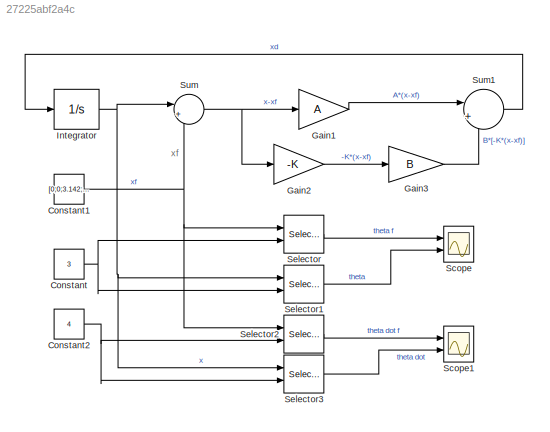
MODEL slx_27225abf2a4c
KIND model
CONFIG AbsTol = auto
CONFIG EnableMultiTasking = off
CONFIG FixedStep = auto
CONFIG MaxStep = auto
CONFIG MinStep = auto
CONFIG RelTol = 1e-3
CONFIG SampleTimeConstraint = Unconstrained
CONFIG SolverName = VariableStepAuto
CONFIG StartTime = 0.0
CONFIG StopTime = 100
BLOCK [Constant] Constant
  Value = 3
BLOCK [Constant] Constant1
  Value = [0;0;3.142;0]
BLOCK [Constant] Constant2
  Value = 4
BLOCK [Gain] Gain1
  Gain = A
  Multiplication = Matrix(K*u) (u vector)
BLOCK [Gain] Gain2
  Gain = -K
  Multiplication = Matrix(K*u) (u vector)
BLOCK [Gain] Gain3
  Gain = B
  Multiplication = Matrix(K*u) (u vector)
BLOCK [Integrator] Integrator
  Ports = [1, 1]
BLOCK [Scope] Scope
  Floating = off
  NumInputPorts = 2
  Ports = [2]
  ScopeSpecificationString = Simulink.scopes.TimeScopeBlockCfg('CurrentConfiguration', extmgr.ConfigurationSet(extmgr.Configuration('Core','General UI',true,'DisplayFullSourceName',true),extmgr.Configuration('Core','Source UI',true),extmgr.Configuration('Sources','WiredSimulink',true),extmgr.Configuration('Visuals','Time Domain',true,'SerializedDisplays',{struct('MinYLimReal','-0.54011','MaxYLimReal','4.86098','YLabelReal',''...<+1598ch>
BLOCK [Scope] Scope1
  Floating = off
  NumInputPorts = 2
  Ports = [2]
  ScopeSpecificationString = Simulink.scopes.TimeScopeBlockCfg('CurrentConfiguration', extmgr.ConfigurationSet(extmgr.Configuration('Core','General UI',true,'DisplayFullSourceName',true),extmgr.Configuration('Core','Source UI',true),extmgr.Configuration('Sources','WiredSimulink',true,'DataLoggingVariableName','ScopeData1'),extmgr.Configuration('Visuals','Time Domain',true,'SerializedDisplays',{struct('MinYLimReal','-0.83024',...<+1645ch>
BLOCK [Selector] Selector
  IndexOptions = Index vector (port)
  Indices = [1 3]
  InputPortWidth = 4
  OutputSizes = 1
  Ports = [2, 1]
BLOCK [Selector] Selector1
  IndexOptions = Index vector (port)
  Indices = [1 3]
  InputPortWidth = 4
  OutputSizes = 1
  Ports = [2, 1]
BLOCK [Selector] Selector2
  IndexOptions = Index vector (port)
  Indices = [1 3]
  InputPortWidth = 4
  OutputSizes = 1
  Ports = [2, 1]
BLOCK [Selector] Selector3
  IndexOptions = Index vector (port)
  Indices = [1 3]
  InputPortWidth = 4
  OutputSizes = 1
  Ports = [2, 1]
BLOCK [Sum] Sum
  Inputs = |+-
  Ports = [2, 1]
BLOCK [Sum] Sum1
  Inputs = |++
  Ports = [2, 1]
ANNOTATION (root): xf
NET Constant1:1 -> Selector2:1, Selector:1, Sum:2
NET Constant2:1 -> Selector2:2, Selector3:2
NET Constant:1 -> Selector1:2, Selector:2
LINE Gain1:1 -> Sum1:1
LINE Gain2:1 -> Gain3:1
LINE Gain3:1 -> Sum1:2
NET Integrator:1 -> Selector1:1, Selector3:1, Sum:1
LINE Selector1:1 -> Scope:2
LINE Selector2:1 -> Scope1:1
LINE Selector3:1 -> Scope1:2
LINE Selector:1 -> Scope:1
LINE Sum1:1 -> Integrator:1
NET Sum:1 -> Gain1:1, Gain2:1
note: NET lines group one-source signal fan-out (src -> all destinations, sorted); 1:1 wires keep LINE
